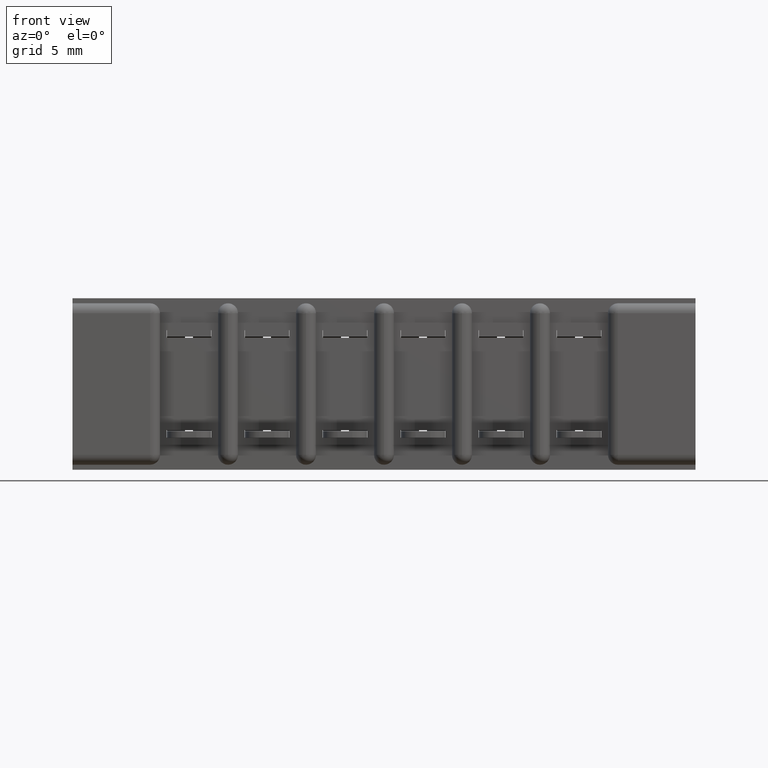
[diagram: clean part render]
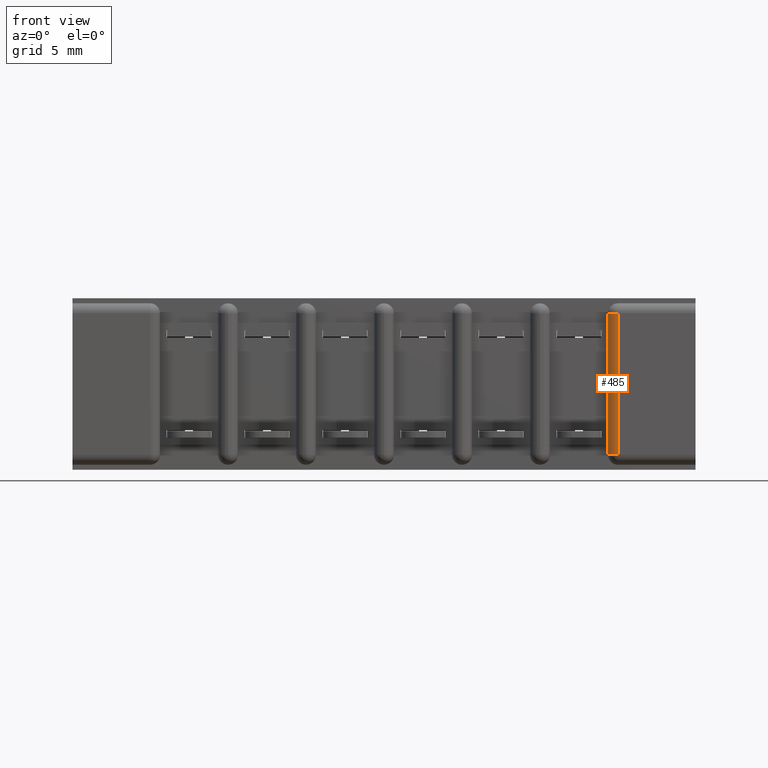
[diagram: same view with one face highlighted and labeled with its STEP entity id]
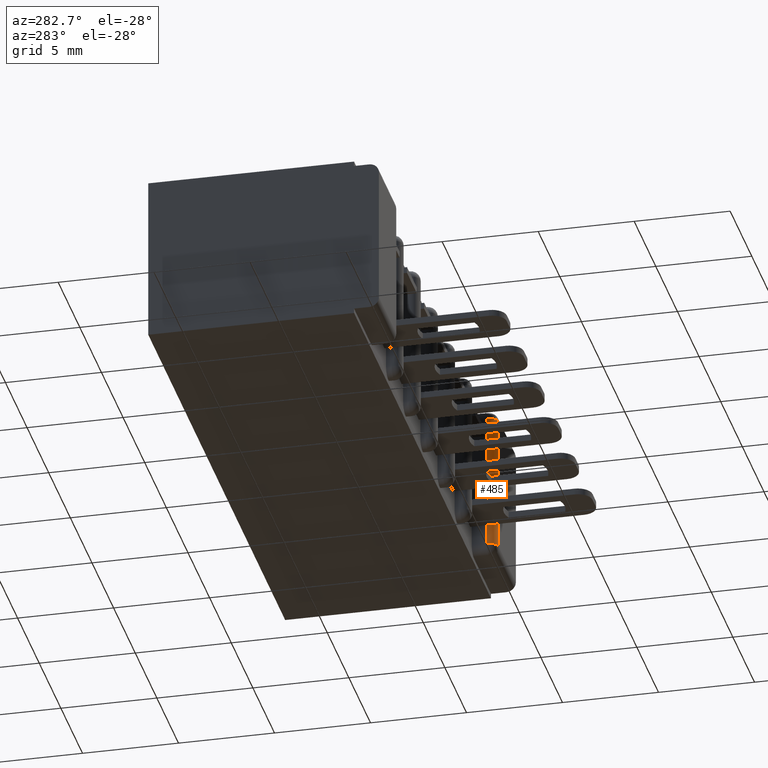
[diagram: same view with one face highlighted and labeled with its STEP entity id]
A machine part, front view. The second image highlights one B-rep face of the part: STEP entity #485.
A second angle (auxiliary view) of the same face is appended — the face is thin or edge-on in the first view.
In plain terms, the highlighted cylindrical surface (edge-blend (fillet) strip) has radius 0.508 mm, axis along (0, 0, -1).
Its self-contained STEP definition (entity closure, byte-faithful):
#314 = DIRECTION ( 'NONE',  ( -0.0000000000000000000, -0.0000000000000000000, -1.000000000000000000 ) ) ;
#399 = FACE_OUTER_BOUND ( 'NONE', #10078, .T. ) ;
#485 = ADVANCED_FACE ( 'NONE', ( #399 ), #6609, .T. ) ;
#602 = CARTESIAN_POINT ( 'NONE',  ( 1.369000000000000400, 0.02000000000000000000, -0.3130000000000000600 ) ) ;
#719 = ORIENTED_EDGE ( 'NONE', *, *, #4059, .F. ) ;
#1311 = LINE ( 'NONE', #1478, #7862 ) ;
#1478 = CARTESIAN_POINT ( 'NONE',  ( 1.389000000000000500, 0.0000000000000000000, -0.3130000000000000000 ) ) ;
#2030 = LINE ( 'NONE', #4901, #3119 ) ;
#2141 = EDGE_CURVE ( 'NONE', #7247, #5460, #3288, .T. ) ;
#2335 = AXIS2_PLACEMENT_3D ( 'NONE', #9356, #7274, #3571 ) ;
#2675 = DIRECTION ( 'NONE',  ( -1.991142852524972300E-015, 0.0000000000000000000, 1.000000000000000000 ) ) ;
#3119 = VECTOR ( 'NONE', #2675, 39.37007874015748100 ) ;
#3243 = AXIS2_PLACEMENT_3D ( 'NONE', #7401, #314, #3413 ) ;
#3288 = CIRCLE ( 'NONE', #7034, 0.02000000000000005900 ) ;
#3413 = DIRECTION ( 'NONE',  ( -1.000000000000000000, 0.0000000000000000000, 0.0000000000000000000 ) ) ;
#3508 = DIRECTION ( 'NONE',  ( -0.0000000000000000000, -0.0000000000000000000, -1.000000000000000000 ) ) ;
#3571 = DIRECTION ( 'NONE',  ( -1.000000000000000000, 0.0000000000000000000, -3.414809992080318900E-015 ) ) ;
#3610 = DIRECTION ( 'NONE',  ( -1.000000000000000000, 0.0000000000000000000, 0.0000000000000000000 ) ) ;
#3669 = CARTESIAN_POINT ( 'NONE',  ( 1.389000000000000500, 0.0000000000000000000, -0.03000000000000008900 ) ) ;
#3932 = CARTESIAN_POINT ( 'NONE',  ( 1.389000000000000500, 0.0000000000000000000, -0.3130000000000000600 ) ) ;
#4006 = EDGE_CURVE ( 'NONE', #6707, #7879, #7748, .T. ) ;
#4059 = EDGE_CURVE ( 'NONE', #7879, #5460, #2030, .T. ) ;
#4569 = CARTESIAN_POINT ( 'NONE',  ( 1.369000000000000400, 0.02000000000000000000, -0.03000000000000007200 ) ) ;
#4901 = CARTESIAN_POINT ( 'NONE',  ( 1.368999999999999800, 0.02000000000000000000, -0.03000000000000006100 ) ) ;
#5460 = VERTEX_POINT ( 'NONE', #4569 ) ;
#5479 = EDGE_CURVE ( 'NONE', #7247, #6707, #1311, .T. ) ;
#6609 = CYLINDRICAL_SURFACE ( 'NONE', #2335, 0.02000000000000005900 ) ;
#6707 = VERTEX_POINT ( 'NONE', #3932 ) ;
#6990 = DIRECTION ( 'NONE',  ( 1.991142852524972300E-015, -0.0000000000000000000, -1.000000000000000000 ) ) ;
#7034 = AXIS2_PLACEMENT_3D ( 'NONE', #8211, #3508, #3610 ) ;
#7174 = ORIENTED_EDGE ( 'NONE', *, *, #2141, .T. ) ;
#7247 = VERTEX_POINT ( 'NONE', #3669 ) ;
#7274 = DIRECTION ( 'NONE',  ( 1.991142852524972300E-015, 0.0000000000000000000, -1.000000000000000000 ) ) ;
#7401 = CARTESIAN_POINT ( 'NONE',  ( 1.389000000000000500, 0.02000000000000000000, -0.3130000000000000600 ) ) ;
#7734 = ORIENTED_EDGE ( 'NONE', *, *, #4006, .F. ) ;
#7748 = CIRCLE ( 'NONE', #3243, 0.02000000000000005900 ) ;
#7862 = VECTOR ( 'NONE', #6990, 39.37007874015748100 ) ;
#7879 = VERTEX_POINT ( 'NONE', #602 ) ;
#8211 = CARTESIAN_POINT ( 'NONE',  ( 1.389000000000000500, 0.02000000000000000000, -0.03000000000000007200 ) ) ;
#8995 = ORIENTED_EDGE ( 'NONE', *, *, #5479, .F. ) ;
#9356 = CARTESIAN_POINT ( 'NONE',  ( 1.389000000000000500, 0.02000000000000000000, -0.3430000000000000800 ) ) ;
#10078 = EDGE_LOOP ( 'NONE', ( #7174, #719, #7734, #8995 ) ) ;